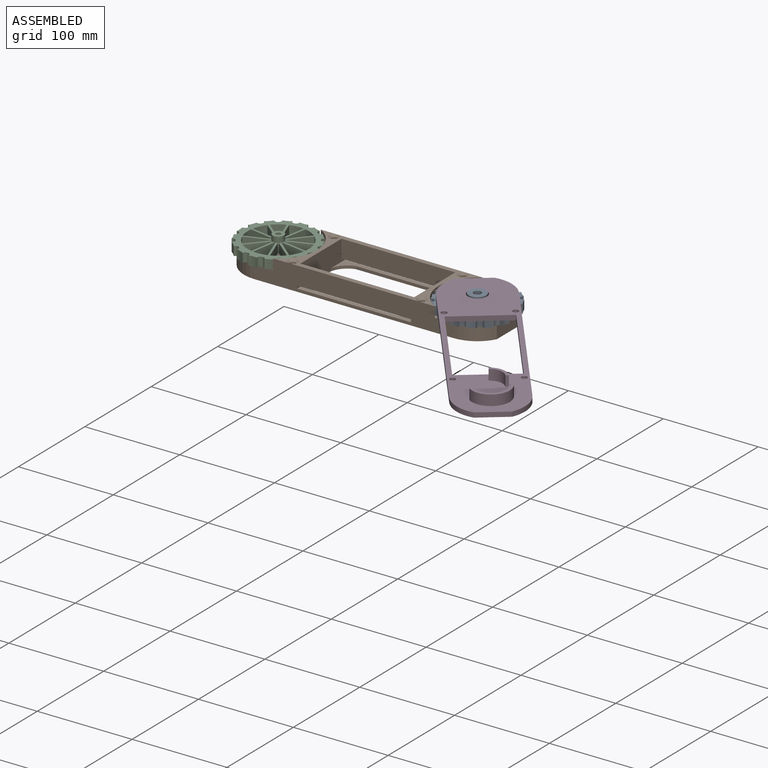
[diagram: assembled view]
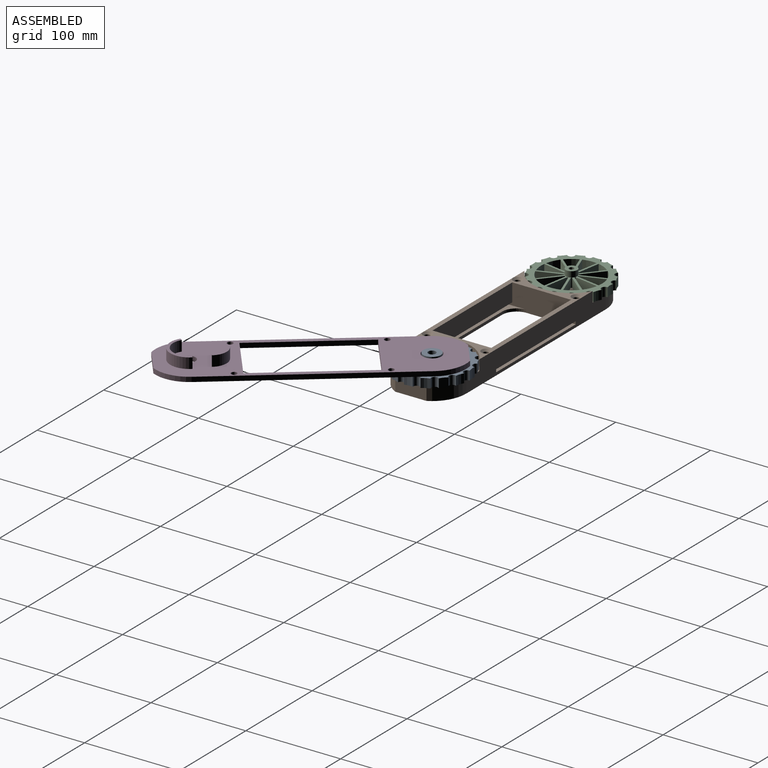
[diagram: assembled view, second angle]
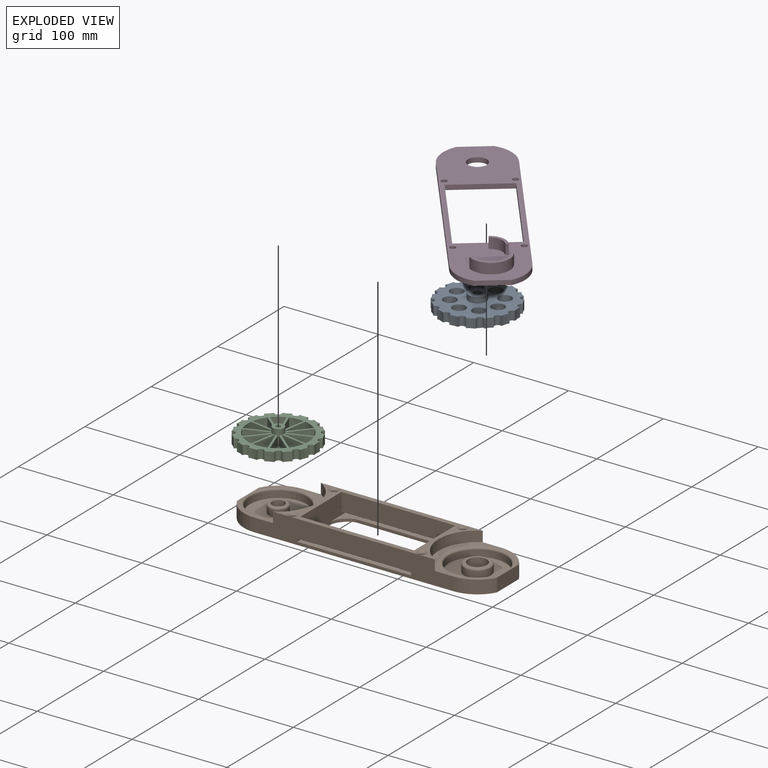
[diagram: exploded view]
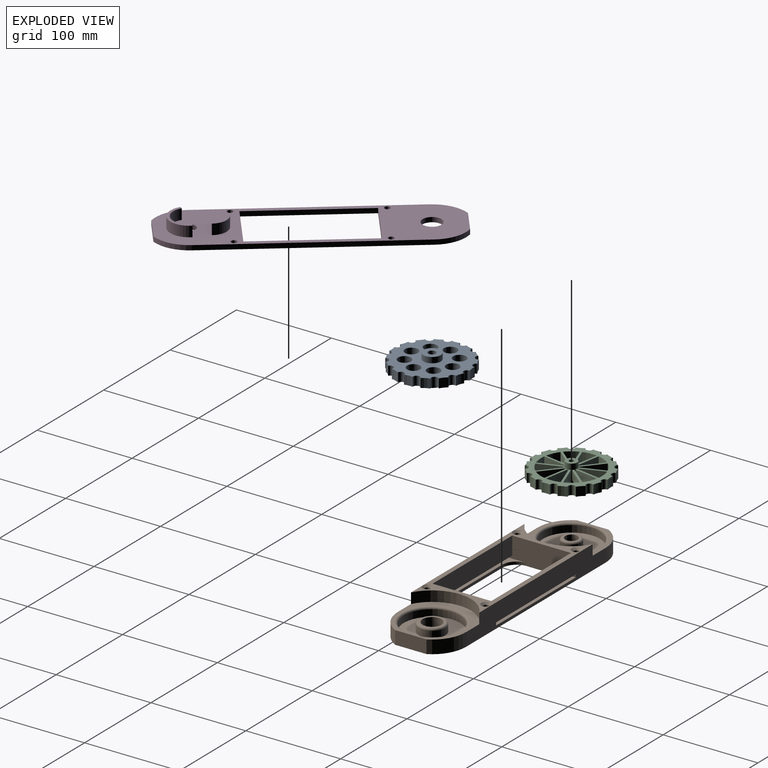
[diagram: exploded view, second angle]
ASSEMBLY  parts=4 mates=3
PART A: 47 faces, bbox 80.7x80.7x29.5 mm
  f0: plane 80.68x80.68mm, normal (0,0,1), area 3313.3mm2, adj f1,f7,f8,f9,f10,f11,f12,f13
  f1: cylinder r=9.2mm len=18.4mm, axis (0,0,1), area 809.3mm2, adj f0,f2
  f2: plane 18.4x18.4mm, normal (0,0,1), area 215.6mm2, adj f1,f3
  f3: cylinder r=4mm len=29.5mm, axis (0,0,1), area 741.4mm2, adj f2,f4
  f4: plane 18.4x18.4mm, normal (0,0,-1), area 215.6mm2, adj f3,f5
  f5: cylinder r=9.2mm len=18.4mm, axis (0,0,1), area 346.8mm2, adj f4,f6
  f6: plane 80.68x80.68mm, normal (0,0,-1), area 3313.3mm2, adj f5,f7,f8,f9,f10,f11,f12,f13
  f7: cylinder r=3.6mm len=9.5mm, axis (0,0,1), area 104mm2, adj f0,f6,f8,f30
  f8: cylinder r=20.32mm len=9.5mm, axis (0,0,1), area 83.1mm2, adj f0,f6,f7,f23
  f9: cylinder r=3.6mm len=9.5mm, axis (0,0,1), area 104mm2, adj f0,f6,f10,f19
  f10: cylinder r=20.32mm len=9.5mm, axis (0,0,1), area 83.1mm2, adj f0,f6,f9,f25
  f11: cylinder r=3.6mm len=9.5mm, axis (0,0,1), area 104mm2, adj f0,f6,f12,f24
  f12: cylinder r=20.32mm len=9.5mm, axis (0,0,1), area 83.1mm2, adj f0,f6,f11,f20
  f13: cylinder r=3.6mm len=9.5mm, axis (0,0,1), area 104mm2, adj f0,f6,f14,f22
  f14: cylinder r=20.32mm len=9.5mm, axis (0,0,1), area 83.1mm2, adj f0,f6,f13,f37
  f15: cylinder r=3.6mm len=9.5mm, axis (0,0,1), area 104mm2, adj f0,f6,f16,f26
  f16: cylinder r=20.32mm len=9.5mm, axis (0,0,1), area 83.1mm2, adj f0,f6,f15,f33
  f17: cylinder r=3.6mm len=9.5mm, axis (0,0,1), area 104mm2, adj f0,f6,f18,f36
  f18: cylinder r=20.32mm len=9.5mm, axis (0,0,1), area 83.1mm2, adj f0,f6,f17,f28
  f19: cylinder r=20.32mm len=9.5mm, axis (0,0,1), area 83.1mm2, adj f0,f6,f9,f20
  f20: cylinder r=3.6mm len=9.5mm, axis (0,0,1), area 104mm2, adj f0,f6,f12,f19
  f21: cylinder r=3.6mm len=9.5mm, axis (0,0,1), area 104mm2, adj f0,f6,f22,f34
  f22: cylinder r=20.32mm len=9.5mm, axis (0,0,1), area 83.1mm2, adj f0,f6,f13,f21
  f23: cylinder r=3.6mm len=9.5mm, axis (0,0,1), area 104mm2, adj f0,f6,f8,f24
  f24: cylinder r=20.32mm len=9.5mm, axis (0,0,1), area 83.1mm2, adj f0,f6,f11,f23
  f25: cylinder r=3.6mm len=9.5mm, axis (0,0,1), area 104mm2, adj f0,f6,f10,f26
  f26: cylinder r=20.32mm len=9.5mm, axis (0,0,1), area 83.1mm2, adj f0,f6,f15,f25
  f27: cylinder r=20.32mm len=9.5mm, axis (0,0,1), area 83.1mm2, adj f0,f6,f28,f31
  f28: cylinder r=3.6mm len=9.5mm, axis (0,0,1), area 104mm2, adj f0,f6,f18,f27
  f29: cylinder r=3.6mm len=9.5mm, axis (0,0,1), area 104mm2, adj f0,f6,f30,f32
  f30: cylinder r=20.32mm len=9.5mm, axis (0,0,1), area 83.1mm2, adj f0,f6,f7,f29
  f31: cylinder r=3.6mm len=9.5mm, axis (0,0,1), area 104mm2, adj f0,f6,f27,f32
  f32: cylinder r=20.32mm len=9.5mm, axis (0,0,1), area 83.1mm2, adj f0,f6,f29,f31
  f33: cylinder r=3.6mm len=9.5mm, axis (0,0,1), area 104mm2, adj f0,f6,f16,f34
  f34: cylinder r=20.32mm len=9.5mm, axis (0,0,1), area 83.1mm2, adj f0,f6,f21,f33
  f35: cylinder r=3.6mm len=9.5mm, axis (0,0,1), area 104mm2, adj f0,f6,f36,f38
  f36: cylinder r=20.32mm len=9.5mm, axis (0,0,1), area 83.1mm2, adj f0,f6,f17,f35
  f37: cylinder r=3.6mm len=9.5mm, axis (0,0,1), area 104mm2, adj f0,f6,f14,f38
  f38: cylinder r=20.32mm len=9.5mm, axis (0,0,1), area 83.1mm2, adj f0,f6,f35,f37
  f39: cylinder r=6.87mm len=13.74mm, axis (0,0,1), area 410.1mm2, adj f0,f6
  f40: cylinder r=6.87mm len=13.74mm, axis (0,0,1), area 410.1mm2, adj f0,f6
  f41: cylinder r=6.87mm len=13.74mm, axis (0,0,1), area 410.1mm2, adj f0,f6
  f42: cylinder r=6.87mm len=13.74mm, axis (0,0,1), area 410.1mm2, adj f0,f6
  f43: cylinder r=6.87mm len=13.74mm, axis (0,0,1), area 410.1mm2, adj f0,f6
  f44: cylinder r=6.87mm len=13.74mm, axis (0,0,1), area 410.1mm2, adj f0,f6
  f45: cylinder r=6.87mm len=13.74mm, axis (0,0,1), area 410.1mm2, adj f0,f6
  f46: cylinder r=6.87mm len=13.74mm, axis (0,0,1), area 410.1mm2, adj f0,f6
PART B: 54 faces, bbox 279.3x72x25 mm
  f0: plane 87.97x3mm, normal (0,-1,0), area 263.9mm2, adj f3,f22,f52,f53
  f1: plane 72x25mm, normal (-1,0,0), area 1485.7mm2, adj f3,f6,f7,f8,f9,f13,f20,f21
  f2: plane 89.29x3mm, normal (0,1,0), area 267.9mm2, adj f3,f21,f50,f51
  f3: plane 274x72mm, normal (0,0,-1), area 11100.9mm2, adj f0,f1,f2,f4,f5,f8,f9,f12
  f4: cylinder r=36mm len=32mm, axis (0,0,-1), area 551.8mm2, adj f3,f8,f16,f31
  f5: cylinder r=36mm len=32mm, axis (0,0,-1), area 551.8mm2, adj f3,f9,f19,f30
  f6: plane 120x19mm, normal (0,-1,0), area 2280mm2, adj f1,f12,f13,f23
  f7: plane 120x19mm, normal (0,1,0), area 2280mm2, adj f1,f12,f13,f20
  f8: plane 210x25mm, normal (0,1,0), area 4458.3mm2, adj f1,f3,f4,f10,f11,f12,f13,f16
  f9: plane 210x25mm, normal (0,-1,0), area 4458.3mm2, adj f1,f3,f5,f10,f11,f12,f13,f14
  f10: cylinder r=41mm len=72mm, axis (0,0,-1), area 966.7mm2, adj f8,f9,f13,f19
  f11: cylinder r=41mm len=72mm, axis (0,0,-1), area 966.7mm2, adj f8,f9,f13,f16
  f12: plane 72x25mm, normal (1,0,0), area 1488.7mm2, adj f3,f6,f7,f8,f9,f13,f20,f21
  f13: plane 170.76x72mm, normal (0,0,1), area 2358.1mm2, adj f1,f6,f7,f8,f9,f10,f11,f12
  f14: cylinder r=36mm len=32mm, axis (0,0,-1), area 551.8mm2, adj f3,f9,f16,f31
  f15: cylinder r=30mm len=60mm, axis (0,0,-1), area 1319.5mm2, adj f29,f44
  f16: plane 73x72mm, normal (0,0,1), area 1237.8mm2, adj f4,f8,f9,f11,f14,f29,f31
  f17: cylinder r=36mm len=32mm, axis (0,0,-1), area 551.8mm2, adj f3,f8,f19,f30
  f18: cylinder r=30mm len=60mm, axis (0,0,-1), area 1319.5mm2, adj f28,f49
  f19: plane 73x72mm, normal (0,0,1), area 1237.8mm2, adj f5,f8,f9,f10,f17,f28,f30
  f20: plane 120x5mm, normal (0,0,-1), area 600mm2, adj f1,f7,f9,f12
  f21: plane 120x20.19mm, normal (0,0,1), area 723mm2, adj f1,f2,f9,f12,f50,f51
  f22: plane 120x20.79mm, normal (0,0,1), area 769.5mm2, adj f0,f1,f8,f12,f52,f53
  f23: plane 120x5.07mm, normal (0,0,-1), area 608.3mm2, adj f1,f6,f8,f12
  f24: cylinder r=3mm len=21mm, axis (0,0,1), area 395.8mm2, adj f35,f39
  f25: cylinder r=3mm len=21mm, axis (0,0,1), area 395.8mm2, adj f34,f36
  f26: cylinder r=3mm len=21mm, axis (0,0,1), area 395.8mm2, adj f33,f37
  f27: cylinder r=3mm len=21mm, axis (0,0,1), area 395.8mm2, adj f32,f38
  f28: torus R=32mm, axis (0,0,1), area 606.5mm2, adj f18,f19
  f29: torus R=32mm, axis (0,0,1), area 606.5mm2, adj f15,f16
  f30: plane 32.99x14mm, normal (1,0,0), area 461.8mm2, adj f3,f5,f17,f19
  f31: plane 32.99x14mm, normal (-1,0,0), area 461.8mm2, adj f3,f4,f14,f16
  f32: cone r=5mm half-angle=45deg, axis (0,0,-1), area 71.1mm2, adj f3,f27
  f33: cone r=5mm half-angle=45deg, axis (0,0,-1), area 71.1mm2, adj f3,f26
  f34: cone r=5mm half-angle=45deg, axis (0,0,-1), area 71.1mm2, adj f3,f25
  f35: cone r=5mm half-angle=45deg, axis (0,0,-1), area 71.1mm2, adj f3,f24
  f36: cone r=3mm half-angle=45deg, axis (0,0,1), area 71.1mm2, adj f13,f25
  f37: cone r=3mm half-angle=45deg, axis (0,0,1), area 71.1mm2, adj f13,f26
  f38: cone r=3mm half-angle=45deg, axis (0,0,1), area 71.1mm2, adj f13,f27
  f39: cone r=3mm half-angle=45deg, axis (0,0,1), area 71.1mm2, adj f13,f24
  f40: cylinder r=6.6mm len=14mm, axis (0,0,-1), area 580.6mm2, adj f3,f42
  f41: cylinder r=10mm len=20mm, axis (0,0,-1), area 439.8mm2, adj f43,f44
  f42: plane 16x16mm, normal (0,0,1), area 64.2mm2, adj f40,f43
  f43: torus R=8mm, axis (0,0,1), area 183mm2, adj f41,f42
  f44: plane 60x60mm, normal (0,0,1), area 2513.3mm2, adj f15,f41
  f45: cylinder r=10mm len=20mm, axis (0,0,-1), area 879.6mm2, adj f3,f47
  f46: cylinder r=14mm len=28mm, axis (0,0,-1), area 615.8mm2, adj f48,f49
  f47: plane 24x24mm, normal (0,0,1), area 138.2mm2, adj f45,f48
  f48: torus R=12mm, axis (0,0,1), area 262mm2, adj f46,f47
  f49: plane 60x60mm, normal (0,0,1), area 2211.7mm2, adj f18,f46
  f50: cylinder r=15.23mm len=14.2mm, axis (0,0,-1), area 65.5mm2, adj f2,f3,f12,f21
  f51: cylinder r=20.35mm len=16.61mm, axis (0,0,-1), area 71.5mm2, adj f1,f2,f3,f21
  f52: cylinder r=24.25mm len=16.84mm, axis (0,0,-1), area 72mm2, adj f0,f1,f3,f22
  f53: cylinder r=21.03mm len=15.72mm, axis (0,0,-1), area 69mm2, adj f0,f3,f12,f22
PART C: 87 faces, bbox 80.7x80.7x29.5 mm
  f0: plane 80.68x80.68mm, normal (0,0,1), area 2212.7mm2, adj f2,f7,f8,f9,f10,f11,f12,f13
  f1: plane 80.68x80.68mm, normal (0,0,-1), area 2212.7mm2, adj f6,f7,f8,f9,f10,f11,f12,f13
  f2: cylinder r=6mm len=14mm, axis (0,0,1), area 527.8mm2, adj f0,f3
  f3: plane 12x12mm, normal (0,0,1), area 93.5mm2, adj f2,f4
  f4: cylinder r=2.5mm len=29.5mm, axis (0,0,1), area 463.4mm2, adj f3,f5
  f5: plane 12x12mm, normal (0,0,-1), area 93.5mm2, adj f4,f6
  f6: cylinder r=6mm len=12mm, axis (0,0,1), area 226.2mm2, adj f1,f5
  f7: cylinder r=3.6mm len=9.5mm, axis (0,0,1), area 104mm2, adj f0,f1,f8,f30
  f8: cylinder r=20.32mm len=9.5mm, axis (0,0,1), area 83.1mm2, adj f0,f1,f7,f23
  f9: cylinder r=3.6mm len=9.5mm, axis (0,0,1), area 104mm2, adj f0,f1,f10,f19
  f10: cylinder r=20.32mm len=9.5mm, axis (0,0,1), area 83.1mm2, adj f0,f1,f9,f25
  f11: cylinder r=3.6mm len=9.5mm, axis (0,0,1), area 104mm2, adj f0,f1,f12,f24
  f12: cylinder r=20.32mm len=9.5mm, axis (0,0,1), area 83.1mm2, adj f0,f1,f11,f20
  f13: cylinder r=3.6mm len=9.5mm, axis (0,0,1), area 104mm2, adj f0,f1,f14,f22
  f14: cylinder r=20.32mm len=9.5mm, axis (0,0,1), area 83.1mm2, adj f0,f1,f13,f37
  f15: cylinder r=3.6mm len=9.5mm, axis (0,0,1), area 104mm2, adj f0,f1,f16,f26
  f16: cylinder r=20.32mm len=9.5mm, axis (0,0,1), area 83.1mm2, adj f0,f1,f15,f33
  f17: cylinder r=3.6mm len=9.5mm, axis (0,0,1), area 104mm2, adj f0,f1,f18,f36
  f18: cylinder r=20.32mm len=9.5mm, axis (0,0,1), area 83.1mm2, adj f0,f1,f17,f28
  f19: cylinder r=20.32mm len=9.5mm, axis (0,0,1), area 83.1mm2, adj f0,f1,f9,f20
  f20: cylinder r=3.6mm len=9.5mm, axis (0,0,1), area 104mm2, adj f0,f1,f12,f19
  f21: cylinder r=3.6mm len=9.5mm, axis (0,0,1), area 104mm2, adj f0,f1,f22,f34
  f22: cylinder r=20.32mm len=9.5mm, axis (0,0,1), area 83.1mm2, adj f0,f1,f13,f21
  f23: cylinder r=3.6mm len=9.5mm, axis (0,0,1), area 104mm2, adj f0,f1,f8,f24
  f24: cylinder r=20.32mm len=9.5mm, axis (0,0,1), area 83.1mm2, adj f0,f1,f11,f23
  f25: cylinder r=3.6mm len=9.5mm, axis (0,0,1), area 104mm2, adj f0,f1,f10,f26
  f26: cylinder r=20.32mm len=9.5mm, axis (0,0,1), area 83.1mm2, adj f0,f1,f15,f25
  f27: cylinder r=20.32mm len=9.5mm, axis (0,0,1), area 83.1mm2, adj f0,f1,f28,f31
  f28: cylinder r=3.6mm len=9.5mm, axis (0,0,1), area 104mm2, adj f0,f1,f18,f27
  f29: cylinder r=3.6mm len=9.5mm, axis (0,0,1), area 104mm2, adj f0,f1,f30,f32
  f30: cylinder r=20.32mm len=9.5mm, axis (0,0,1), area 83.1mm2, adj f0,f1,f7,f29
  f31: cylinder r=3.6mm len=9.5mm, axis (0,0,1), area 104mm2, adj f0,f1,f27,f32
  f32: cylinder r=20.32mm len=9.5mm, axis (0,0,1), area 83.1mm2, adj f0,f1,f29,f31
  f33: cylinder r=3.6mm len=9.5mm, axis (0,0,1), area 104mm2, adj f0,f1,f16,f34
  f34: cylinder r=20.32mm len=9.5mm, axis (0,0,1), area 83.1mm2, adj f0,f1,f21,f33
  f35: cylinder r=3.6mm len=9.5mm, axis (0,0,1), area 104mm2, adj f0,f1,f36,f38
  f36: cylinder r=20.32mm len=9.5mm, axis (0,0,1), area 83.1mm2, adj f0,f1,f17,f35
  f37: cylinder r=3.6mm len=9.5mm, axis (0,0,1), area 104mm2, adj f0,f1,f14,f38
  f38: cylinder r=20.32mm len=9.5mm, axis (0,0,1), area 83.1mm2, adj f0,f1,f35,f37
  f39: cylinder r=6.22mm len=9.5mm, axis (0,0,1), area 10.1mm2, adj f0,f1,f40,f42
  f40: plane 22.52x13mm, normal (0.87,0.5,0), area 247mm2, adj f0,f1,f39,f41
  f41: cylinder r=32.12mm len=10.29mm, axis (0,0,1), area 139.2mm2, adj f0,f1,f40,f42
  f42: plane 22.54x13.01mm, normal (-0.5,-0.87,0), area 247.3mm2, adj f0,f1,f39,f41
  f43: cylinder r=6.22mm len=9.5mm, axis (0,0,1), area 10.1mm2, adj f0,f1,f44,f46
  f44: plane 22.55x13.02mm, normal (0.5,0.87,0), area 247.3mm2, adj f0,f1,f43,f45
  f45: cylinder r=32.12mm len=14.04mm, axis (0,0,1), area 139.3mm2, adj f0,f1,f44,f46
  f46: plane 26.05x9.5mm, normal (0,-1,0), area 247.4mm2, adj f0,f1,f43,f45
  f47: cylinder r=6.22mm len=9.5mm, axis (0,0,1), area 10.1mm2, adj f0,f1,f48,f50
  f48: plane 22.56x13.02mm, normal (-0.5,0.87,0), area 247.5mm2, adj f0,f1,f47,f49
  f49: cylinder r=32.12mm len=10.3mm, axis (0,0,1), area 139.3mm2, adj f0,f1,f48,f50
  f50: plane 22.54x13.01mm, normal (0.87,-0.5,0), area 247.2mm2, adj f0,f1,f47,f49
  f51: cylinder r=6.22mm len=9.5mm, axis (0,0,1), area 10.1mm2, adj f0,f1,f52,f54
  f52: plane 26.05x9.5mm, normal (0,1,0), area 247.5mm2, adj f0,f1,f51,f53
  f53: cylinder r=32.12mm len=14.05mm, axis (0,0,1), area 139.4mm2, adj f0,f1,f52,f54
  f54: plane 22.56x13.02mm, normal (0.5,-0.87,0), area 247.4mm2, adj f0,f1,f51,f53
  f55: cylinder r=6.22mm len=9.5mm, axis (0,0,1), area 10.1mm2, adj f0,f1,f56,f58
  f56: plane 25.99x9.5mm, normal (-1,0,0), area 246.9mm2, adj f0,f1,f55,f57
  f57: cylinder r=32.12mm len=14mm, axis (0,0,1), area 139mm2, adj f0,f1,f56,f58
  f58: plane 22.47x12.98mm, normal (0.87,0.5,0), area 246.5mm2, adj f0,f1,f55,f57
  f59: cylinder r=6.22mm len=9.5mm, axis (0,0,1), area 10.1mm2, adj f0,f1,f60,f62
  f60: plane 22.47x12.98mm, normal (-0.87,-0.5,0), area 246.5mm2, adj f0,f1,f59,f61
  f61: cylinder r=32.12mm len=10.27mm, axis (0,0,1), area 138.8mm2, adj f0,f1,f60,f62
  f62: plane 22.45x12.96mm, normal (0.5,0.87,0), area 246.2mm2, adj f0,f1,f59,f61
  f63: cylinder r=6.22mm len=9.5mm, axis (0,0,1), area 10.1mm2, adj f0,f1,f64,f66
  f64: plane 22.45x12.96mm, normal (-0.5,-0.87,0), area 246.2mm2, adj f0,f1,f63,f65
  f65: cylinder r=32.12mm len=13.98mm, axis (0,0,1), area 138.7mm2, adj f0,f1,f64,f66
  f66: plane 25.9x9.5mm, normal (0,1,0), area 246.1mm2, adj f0,f1,f63,f65
  f67: cylinder r=6.22mm len=9.5mm, axis (0,0,1), area 10.1mm2, adj f0,f1,f68,f70
  f68: plane 22.54x13.01mm, normal (-0.87,0.5,0), area 247.2mm2, adj f0,f1,f67,f69
  f69: cylinder r=32.12mm len=14.04mm, axis (0,0,1), area 139.2mm2, adj f0,f1,f68,f70
  f70: plane 25.99x9.5mm, normal (1,0,0), area 246.9mm2, adj f0,f1,f67,f69
  f71: cylinder r=6.22mm len=9.5mm, axis (0,0,1), area 10.1mm2, adj f0,f1,f72,f74
  f72: plane 25.97x9.5mm, normal (1,0,0), area 246.7mm2, adj f0,f1,f71,f73
  f73: cylinder r=32.12mm len=14.02mm, axis (0,0,1), area 139mm2, adj f0,f1,f72,f74
  f74: plane 22.51x13mm, normal (-0.87,-0.5,0), area 247mm2, adj f0,f1,f71,f73
  f75: cylinder r=6.22mm len=9.5mm, axis (0,0,1), area 10.1mm2, adj f0,f1,f76,f78
  f76: plane 22.46x12.97mm, normal (0.87,-0.5,0), area 246.3mm2, adj f0,f1,f75,f77
  f77: cylinder r=32.12mm len=13.99mm, axis (0,0,1), area 138.9mm2, adj f0,f1,f76,f78
  f78: plane 25.96x9.5mm, normal (-1,0,0), area 246.6mm2, adj f0,f1,f75,f77
  f79: cylinder r=6.22mm len=9.5mm, axis (0,0,1), area 10.1mm2, adj f0,f1,f80,f82
  f80: plane 25.9x9.5mm, normal (0,-1,0), area 246.1mm2, adj f0,f1,f79,f81
  f81: cylinder r=32.12mm len=13.98mm, axis (0,0,1), area 138.6mm2, adj f0,f1,f80,f82
  f82: plane 22.43x12.95mm, normal (-0.5,0.87,0), area 246.1mm2, adj f0,f1,f79,f81
  f83: cylinder r=6.22mm len=9.5mm, axis (0,0,1), area 10.1mm2, adj f0,f1,f84,f86
  f84: plane 22.44x12.95mm, normal (0.5,-0.87,0), area 246.1mm2, adj f0,f1,f83,f85
  f85: cylinder r=32.12mm len=10.24mm, axis (0,0,1), area 138.7mm2, adj f0,f1,f84,f86
  f86: plane 22.45x12.96mm, normal (-0.87,0.5,0), area 246.3mm2, adj f0,f1,f83,f85
PART D: 30 faces, bbox 274x72x16 mm
  f0: plane 274x72mm, normal (0,0,1), area 10786.4mm2, adj f1,f2,f3,f4,f5,f6,f7,f8
  f1: plane 120x5mm, normal (0,-1,0), area 600mm2, adj f0,f2,f12,f19
  f2: plane 61.93x5mm, normal (-1,0,0), area 309.7mm2, adj f0,f1,f3,f19
  f3: plane 120x5mm, normal (0,1,0), area 600mm2, adj f0,f2,f12,f19
  f4: plane 210x5mm, normal (0,1,0), area 1050mm2, adj f0,f5,f16,f19
  f5: cylinder r=36mm len=32mm, axis (0,0,-1), area 197.1mm2, adj f0,f4,f6,f19
  f6: plane 32.99x5mm, normal (-1,0,0), area 164.9mm2, adj f0,f5,f7,f19
  f7: cylinder r=36mm len=32mm, axis (0,0,-1), area 197.1mm2, adj f0,f6,f8,f19
  f8: plane 210x5mm, normal (0,-1,0), area 1050mm2, adj f0,f7,f9,f19
  f9: cylinder r=36mm len=32mm, axis (0,0,-1), area 197.1mm2, adj f0,f8,f10,f19
  f10: plane 32.99x5mm, normal (1,0,0), area 164.9mm2, adj f0,f9,f16,f19
  f11: cylinder r=3mm len=6mm, axis (0,0,-1), area 94.2mm2, adj f0,f19
  f12: plane 61.93x5mm, normal (1,0,0), area 309.7mm2, adj f0,f1,f3,f19
  f13: cylinder r=3mm len=6mm, axis (0,0,-1), area 94.2mm2, adj f0,f19
  f14: cylinder r=3mm len=6mm, axis (0,0,-1), area 94.2mm2, adj f0,f19
  f15: cylinder r=10mm len=20mm, axis (0,0,-1), area 314.2mm2, adj f0,f19
  f16: cylinder r=36mm len=32mm, axis (0,0,-1), area 197.1mm2, adj f0,f4,f10,f19
  f17: cylinder r=6.6mm len=13.2mm, axis (0,0,-1), area 207.3mm2, adj f0,f19
  f18: cylinder r=3mm len=6mm, axis (0,0,-1), area 94.2mm2, adj f0,f19
  f19: plane 274x72mm, normal (0,0,-1), area 11017.7mm2, adj f1,f2,f3,f4,f5,f6,f7,f8
  f20: plane 11x2.83mm, normal (0.94,0.33,0), area 33mm2, adj f0,f21,f23,f24
  f21: cylinder r=20mm len=38.87mm, axis (0,0,-1), area 634.8mm2, adj f0,f20,f22,f24
  f22: plane 11x2.99mm, normal (1,0.08,0), area 33mm2, adj f0,f21,f23,f24
  f23: cylinder r=17mm len=33.04mm, axis (0,0,-1), area 539.5mm2, adj f0,f20,f22,f24
  f24: plane 38.87x21.64mm, normal (0,0,1), area 160.1mm2, adj f20,f21,f22,f23
  f25: plane 11x3mm, normal (-1,0,0), area 33mm2, adj f0,f26,f28,f29
  f26: cylinder r=16.59mm len=16.6mm, axis (0,0,-1), area 286.9mm2, adj f0,f25,f27,f29
  f27: plane 11x3mm, normal (0,1,0), area 33mm2, adj f0,f26,f28,f29
  f28: cylinder r=13.59mm len=13.6mm, axis (0,0,-1), area 235mm2, adj f0,f25,f27,f29
  f29: plane 16.6x16.6mm, normal (0,0,1), area 71.2mm2, adj f25,f26,f27,f28
PLACE A rot(axis=(-0.44,-0.9,0),180deg) t=(162.8,30.42,12.57)mm
PLACE B t=(-47.2,30.42,-16.93)mm fixed
PLACE C rot(axis=(-0.09,-1,0),180deg) t=(-47.2,30.42,12.57)mm
PLACE D rot(axis=(0,0,1),128.2deg) t=(292.54,-134.72,6.57)mm
MATE revolute A.f1 <-> B.f5  axis (0,0,-1) through (162.8,30.42,-16.93)mm
MATE fastened D.f9 <-> A.f1  axis (0,0,-1) through (162.8,30.42,6.57)mm
MATE revolute C.f2 <-> B.f4  axis (0,0,-1) through (-47.2,30.42,-16.93)mm
